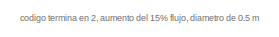
[diagram: root canvas - part 1/2, top right region]
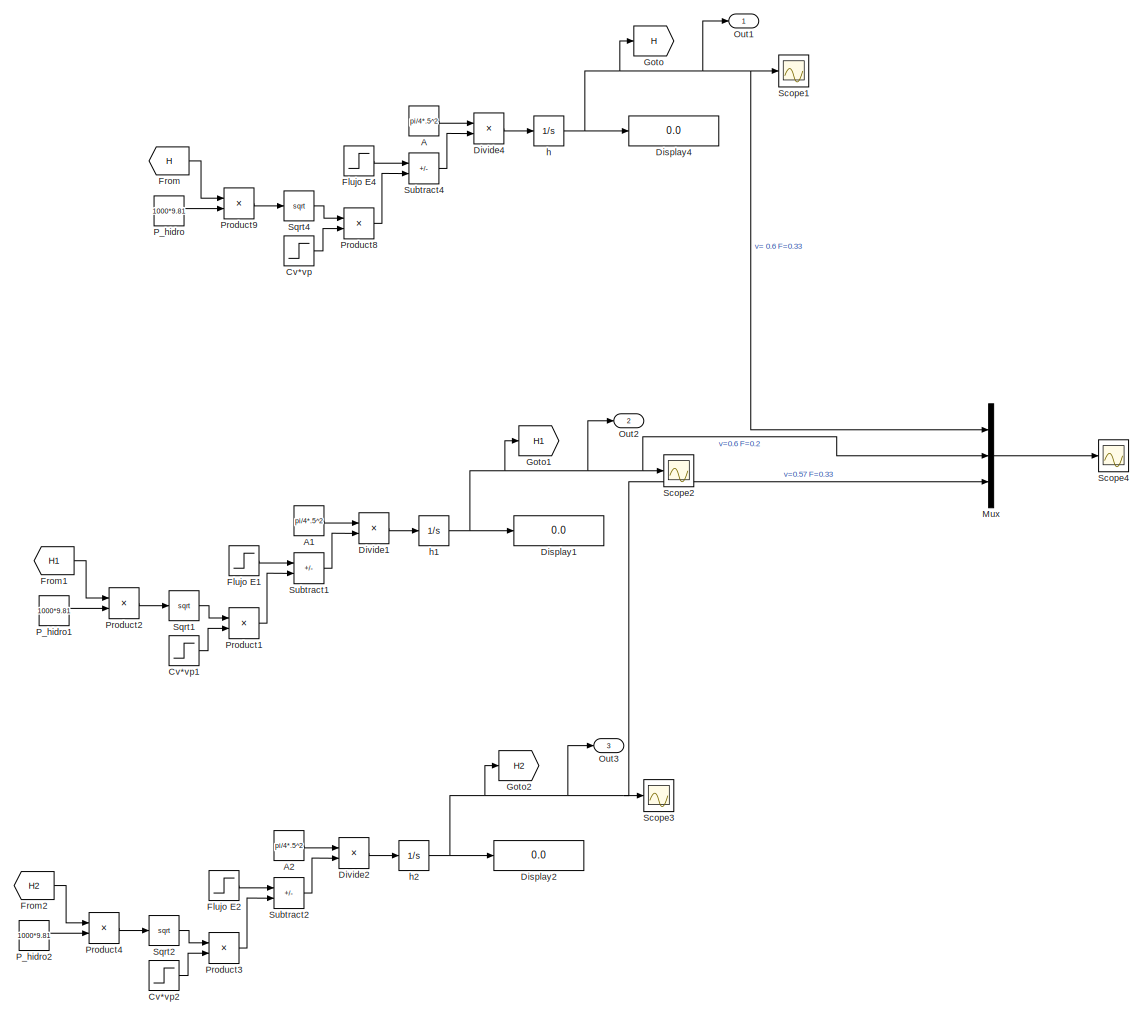
[diagram: root canvas - part 2/2, full width, middle band]
MODEL slx_debe31b0a7fc
KIND model
CONFIG AbsTol = auto
CONFIG EnableMultiTasking = off
CONFIG FixedStep = auto
CONFIG MaxStep = auto
CONFIG MinStep = auto
CONFIG RelTol = 1e-3
CONFIG SampleTimeConstraint = Unconstrained
CONFIG SolverName = VariableStepAuto
CONFIG StartTime = 0.0
CONFIG StopTime = 40
BLOCK [Constant] A
  Value = pi/4*.5^2
BLOCK [Constant] A1
  Value = pi/4*.5^2
BLOCK [Constant] A2
  Value = pi/4*.5^2
BLOCK [Step] Cv*vp
  After = 0.0041*0.691
  Before = 0.0041*0.6
  SampleTime = 0
  Time = 15
BLOCK [Step] Cv*vp1
  After = 0.0041*0.691
  Before = 0.0041*0.6
  SampleTime = 0
  Time = 15
BLOCK [Step] Cv*vp2
  After = 0.0041*0.57
  Before = 0.0041*0.6
  SampleTime = 0
  Time = 15
BLOCK [Display] Display1
  Decimation = 1
  Ports = [1]
BLOCK [Display] Display2
  Decimation = 1
  Ports = [1]
BLOCK [Display] Display4
  Decimation = 1
  Ports = [1]
BLOCK [Product] Divide1
  Inputs = /*
  Ports = [2, 1]
BLOCK [Product] Divide2
  Inputs = /*
  Ports = [2, 1]
BLOCK [Product] Divide4
  Inputs = /*
  Ports = [2, 1]
BLOCK [Step] Flujo E1
  After = 0.2*1.15
  Before = 0.2
  SampleTime = 0
  Time = 10
BLOCK [Step] Flujo E2
  After = 0.33*1.15
  Before = 0.33
  SampleTime = 0
  Time = 10
BLOCK [Step] Flujo E4
  After = 0.33*1.15
  Before = 0.33
  SampleTime = 0
  Time = 10
BLOCK [From] From
  GotoTag = H
BLOCK [From] From1
  GotoTag = H1
BLOCK [From] From2
  GotoTag = H2
BLOCK [Goto] Goto
  GotoTag = H
BLOCK [Goto] Goto1
  GotoTag = H1
BLOCK [Goto] Goto2
  GotoTag = H2
BLOCK [Mux] Mux
  DisplayOption = bar
  Inputs = 3
  Ports = [3, 1]
BLOCK [Outport] Out1
BLOCK [Outport] Out2
  Port = 2
BLOCK [Outport] Out3
  Port = 3
BLOCK [Constant] P_hidro
  Value = 1000*9.81
BLOCK [Constant] P_hidro1
  Value = 1000*9.81
BLOCK [Constant] P_hidro2
  Value = 1000*9.81
BLOCK [Product] Product1
  Ports = [2, 1]
BLOCK [Product] Product2
  Ports = [2, 1]
BLOCK [Product] Product3
  Ports = [2, 1]
BLOCK [Product] Product4
  Ports = [2, 1]
BLOCK [Product] Product8
  Ports = [2, 1]
BLOCK [Product] Product9
  Ports = [2, 1]
BLOCK [Scope] Scope1
  Floating = off
  NumInputPorts = 1
  Ports = [1]
  ScopeSpecificationString = Simulink.scopes.TimeScopeBlockCfg('CurrentConfiguration', extmgr.ConfigurationSet(extmgr.Configuration('Core','General UI',true,'FigureColor',[0.933333333333333 0.933333333333333 0.933333333333333]),extmgr.Configuration('Core','Source UI',true),extmgr.Configuration('Sources','WiredSimulink',true,'DataLoggingVariableName','ScopeData1'),extmgr.Configuration('Visuals','Time Domain',true,'SerializedDi...<+1605ch>
BLOCK [Scope] Scope2
  Floating = off
  NumInputPorts = 1
  Ports = [1]
  ScopeSpecificationString = Simulink.scopes.TimeScopeBlockCfg('CurrentConfiguration', extmgr.ConfigurationSet(extmgr.Configuration('Core','General UI',true),extmgr.Configuration('Core','Source UI',true),extmgr.Configuration('Sources','WiredSimulink',true,'DataLoggingVariableName','ScopeData1'),extmgr.Configuration('Visuals','Time Domain',true,'SerializedDisplays',{struct('MinYLimReal','1.78375','MaxYLimReal','2.24625','YLabe...<+1430ch>
BLOCK [Scope] Scope3
  Floating = off
  NumInputPorts = 1
  Ports = [1]
  ScopeSpecificationString = Simulink.scopes.TimeScopeBlockCfg('CurrentConfiguration', extmgr.ConfigurationSet(extmgr.Configuration('Core','General UI',true),extmgr.Configuration('Core','Source UI',true),extmgr.Configuration('Sources','WiredSimulink',true,'DataLoggingVariableName','ScopeData2'),extmgr.Configuration('Visuals','Time Domain',true,'SerializedDisplays',{struct('MinYLimReal','1.78375','MaxYLimReal','2.24625','YLabe...<+1430ch>
BLOCK [Scope] Scope4
  Floating = off
  NumInputPorts = 1
  Ports = [1]
  ScopeSpecificationString = Simulink.scopes.TimeScopeBlockCfg('CurrentConfiguration', extmgr.ConfigurationSet(extmgr.Configuration('Core','General UI',true,'FigureColor',[1 1 1]),extmgr.Configuration('Core','Source UI',true),extmgr.Configuration('Sources','WiredSimulink',true,'DataLoggingVariableName','ScopeData3'),extmgr.Configuration('Visuals','Time Domain',true,'SerializedDisplays',{struct('MinYLimReal','0.4','MaxYLimReal...<+1902ch>
BLOCK [Sqrt] Sqrt1
BLOCK [Sqrt] Sqrt2
BLOCK [Sqrt] Sqrt4
BLOCK [Sum] Subtract1
  IconShape = rectangular
  Inputs = +-
  Ports = [2, 1]
BLOCK [Sum] Subtract2
  IconShape = rectangular
  Inputs = +-
  Ports = [2, 1]
BLOCK [Sum] Subtract4
  IconShape = rectangular
  Inputs = +-
  Ports = [2, 1]
BLOCK [Integrator] h
  InitialCondition = 1.83
  LimitOutput = on
  LowerSaturationLimit = 0
  Ports = [1, 1]
  UpperSaturationLimit = 2.2
BLOCK [Integrator] h1
  InitialCondition = 1.83
  LimitOutput = on
  LowerSaturationLimit = 0
  Ports = [1, 1]
  UpperSaturationLimit = 2.2
BLOCK [Integrator] h2
  InitialCondition = 1.83
  LimitOutput = on
  LowerSaturationLimit = 0
  Ports = [1, 1]
  UpperSaturationLimit = 2.2
ANNOTATION (root): codigo termina en 2, aumento del 15% flujo, diametro de 0.5 m
LINE A1:1 -> Divide1:1
LINE A2:1 -> Divide2:1
LINE A:1 -> Divide4:1
LINE Cv*vp1:1 -> Product1:2
LINE Cv*vp2:1 -> Product3:2
LINE Cv*vp:1 -> Product8:2
LINE Divide1:1 -> h1:1
LINE Divide2:1 -> h2:1
LINE Divide4:1 -> h:1
LINE Flujo E1:1 -> Subtract1:1
LINE Flujo E2:1 -> Subtract2:1
LINE Flujo E4:1 -> Subtract4:1
LINE From1:1 -> Product2:1
LINE From2:1 -> Product4:1
LINE From:1 -> Product9:1
LINE Mux:1 -> Scope4:1
LINE P_hidro1:1 -> Product2:2
LINE P_hidro2:1 -> Product4:2
LINE P_hidro:1 -> Product9:2
LINE Product1:1 -> Subtract1:2
LINE Product2:1 -> Sqrt1:1
LINE Product3:1 -> Subtract2:2
LINE Product4:1 -> Sqrt2:1
LINE Product8:1 -> Subtract4:2
LINE Product9:1 -> Sqrt4:1
LINE Sqrt1:1 -> Product1:1
LINE Sqrt2:1 -> Product3:1
LINE Sqrt4:1 -> Product8:1
LINE Subtract1:1 -> Divide1:2
LINE Subtract2:1 -> Divide2:2
LINE Subtract4:1 -> Divide4:2
NET h1:1 -> Display1:1, Goto1:1, Mux:2, Out2:1, Scope2:1
NET h2:1 -> Display2:1, Goto2:1, Mux:3, Out3:1, Scope3:1
NET h:1 -> Display4:1, Goto:1, Mux:1, Out1:1, Scope1:1
note: NET lines group one-source signal fan-out (src -> all destinations, sorted); 1:1 wires keep LINE
